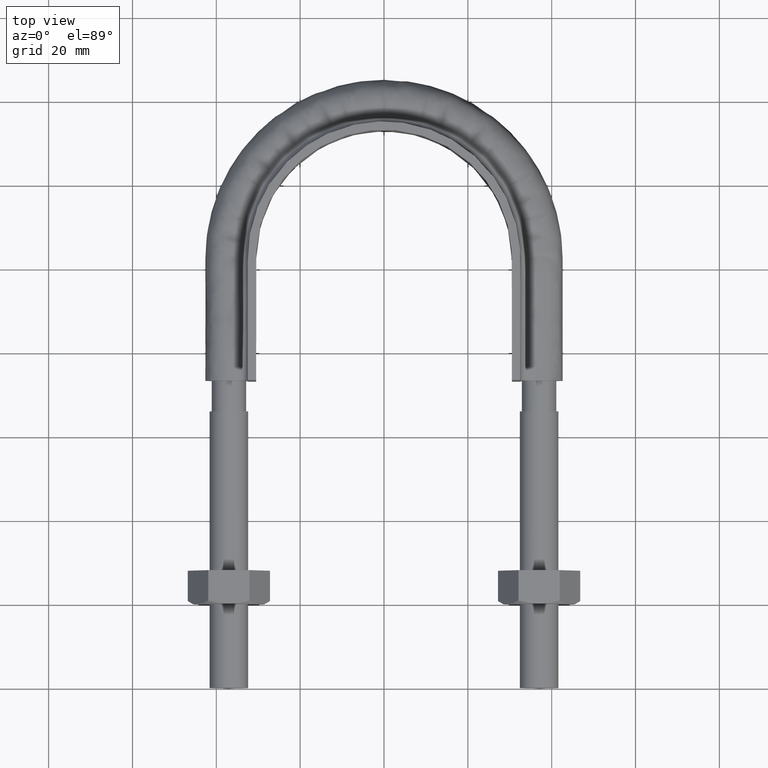
[diagram: clean part render]
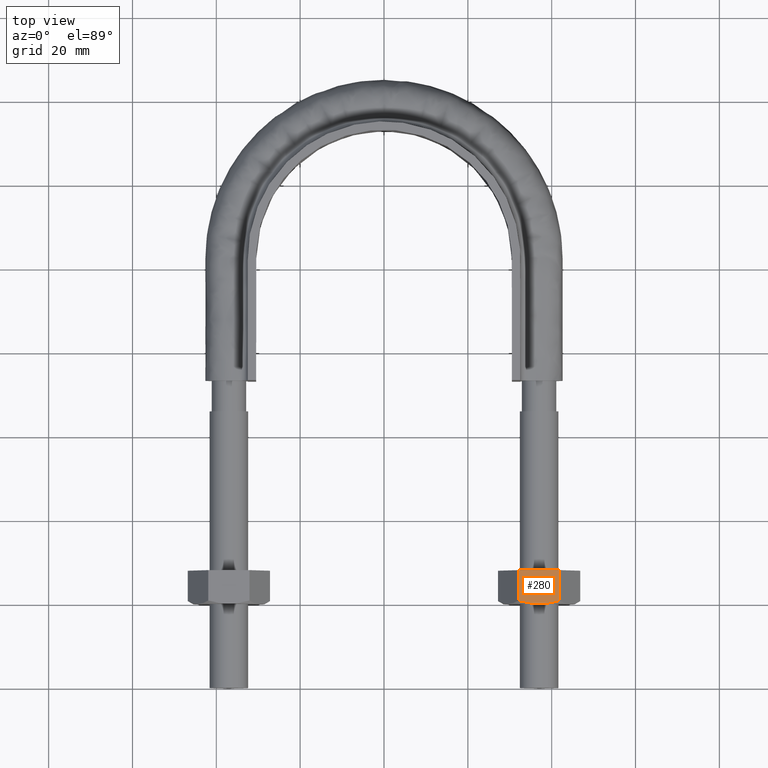
[diagram: same view with one face highlighted and labeled with its STEP entity id]
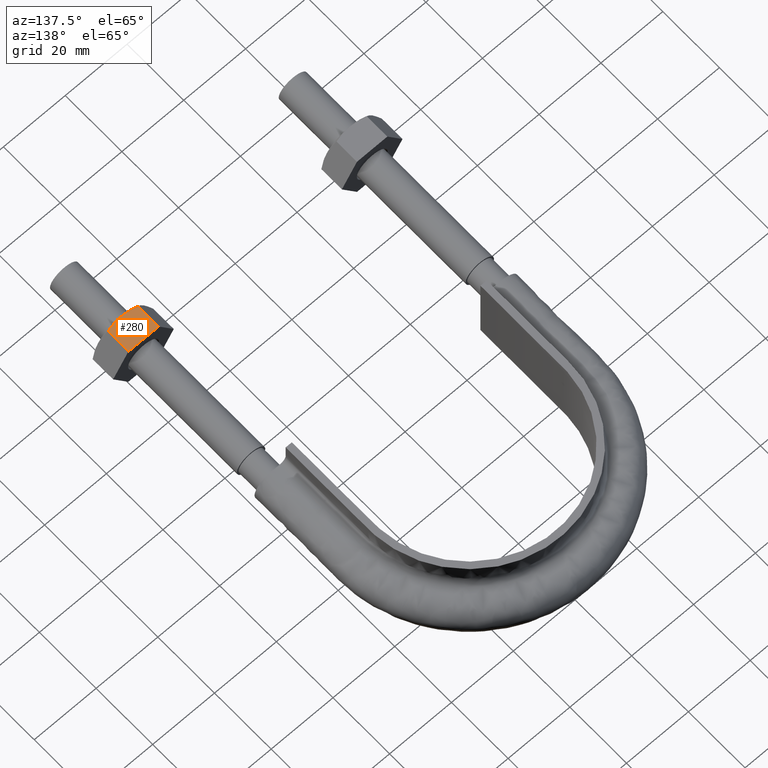
[diagram: same view with one face highlighted and labeled with its STEP entity id]
A machine part, top view. The second image highlights one B-rep face of the part: STEP entity #280.
A second angle (auxiliary view) of the same face is appended — the face is thin or edge-on in the first view.
In plain terms, the highlighted planar face has unit normal (0, -0, -1).
Its self-contained STEP definition (entity closure, byte-faithful):
#280 = ADVANCED_FACE( '', ( #435 ), #436, .F. );
#435 = FACE_OUTER_BOUND( '', #1432, .T. );
#436 = PLANE( '', #1433 );
#1432 = EDGE_LOOP( '', ( #1900, #1901, #1902, #1903, #1904 ) );
#1433 = AXIS2_PLACEMENT_3D( '', #1905, #1906, #1907 );
#1900 = ORIENTED_EDGE( '', *, *, #2134, .F. );
#1901 = ORIENTED_EDGE( '', *, *, #2139, .F. );
#1902 = ORIENTED_EDGE( '', *, *, #2133, .F. );
#1903 = ORIENTED_EDGE( '', *, *, #2130, .F. );
#1904 = ORIENTED_EDGE( '', *, *, #2140, .F. );
#1905 = CARTESIAN_POINT( '', ( 32.0925227118848, 27.9999999999964, 8.49999999999807 ) );
#1906 = DIRECTION( '', ( 3.92741394961149E-013, -6.12303176912151E-017, -1.00000000000000 ) );
#1907 = DIRECTION( '', ( -1.00000000000000, 2.44921270764451E-016, -3.92741394961149E-013 ) );
#2130 = EDGE_CURVE( '', #2368, #2350, #2370, .T. );
#2133 = EDGE_CURVE( '', #2350, #2371, #2375, .F. );
#2134 = EDGE_CURVE( '', #2328, #2376, #2377, .T. );
#2139 = EDGE_CURVE( '', #2371, #2328, #2383, .T. );
#2140 = EDGE_CURVE( '', #2376, #2368, #2384, .T. );
#2328 = VERTEX_POINT( '', #2923 );
#2350 = VERTEX_POINT( '', #2960 );
#2368 = VERTEX_POINT( '', #2982 );
#2370 = LINE( '', #2984, #2985 );
#2371 = VERTEX_POINT( '', #2986 );
#2375 = LINE( '', #2991, #2992 );
#2376 = VERTEX_POINT( '', #2993 );
#2377 = B_SPLINE_CURVE_WITH_KNOTS( '', 3, ( #2994, #2995, #2996, #2997, #2998, #2999, #3000, #3001 ), .UNSPECIFIED., .F., .F., ( 4, 2, 2, 4 ), ( 0.00493529902949373, 0.00616408349151779, 0.00739286795354186, 0.00985043687758999 ), .UNSPECIFIED. );
#2383 = B_SPLINE_CURVE_WITH_KNOTS( '', 3, ( #3018, #3019, #3020, #3021, #3022, #3023 ), .UNSPECIFIED., .F., .F., ( 4, 2, 4 ), ( 7.17194508352321E-007, 0.00246800811200104, 0.00493529902949373 ), .UNSPECIFIED. );
#2384 = LINE( '', #3024, #3025 );
#2923 = CARTESIAN_POINT( '', ( 36.9999999999967, 19.9999999999964, 8.50000000000000 ) );
#2960 = CARTESIAN_POINT( '', ( 41.8774993592995, 27.9999999999964, 8.50000000000191 ) );
#2982 = CARTESIAN_POINT( '', ( 32.1225006406938, 27.9999999999964, 8.49999999999809 ) );
#2984 = CARTESIAN_POINT( '', ( 32.0999999999967, 27.9999999999964, 8.49999999999807 ) );
#2985 = VECTOR( '', #3279, 1000.00000000000 );
#2986 = CARTESIAN_POINT( '', ( 41.8774993592995, 20.7505553499429, 8.50000000000191 ) );
#2991 = CARTESIAN_POINT( '', ( 41.8774993592995, 27.9999999999964, 8.50000000000191 ) );
#2992 = VECTOR( '', #3284, 1000.00000000000 );
#2993 = CARTESIAN_POINT( '', ( 32.1225006406938, 20.7505553499429, 8.49999999999809 ) );
#2994 = CARTESIAN_POINT( '', ( 36.9999999999967, 19.9999999999964, 8.50000000000000 ) );
#2995 = CARTESIAN_POINT( '', ( 36.5862903722458, 19.9999999999964, 8.49999999999984 ) );
#2996 = CARTESIAN_POINT( '', ( 36.1705131783942, 20.0177112141184, 8.49999999999967 ) );
#2997 = CARTESIAN_POINT( '', ( 35.3480009983391, 20.0863020976762, 8.49999999999935 ) );
#2998 = CARTESIAN_POINT( '', ( 34.9394788819999, 20.1371114863303, 8.49999999999919 ) );
#2999 = CARTESIAN_POINT( '', ( 33.7211323152159, 20.3331491064619, 8.49999999999871 ) );
#3000 = CARTESIAN_POINT( '', ( 32.9185008687894, 20.5218250443813, 8.49999999999839 ) );
#3001 = CARTESIAN_POINT( '', ( 32.1225006406938, 20.7505553499429, 8.49999999999808 ) );
#3018 = CARTESIAN_POINT( '', ( 41.8774993592995, 20.7505553499429, 8.50000000000191 ) );
#3019 = CARTESIAN_POINT( '', ( 41.0793958257554, 20.5212206605119, 8.50000000000160 ) );
#3020 = CARTESIAN_POINT( '', ( 40.2755276393699, 20.3324529479768, 8.50000000000129 ) );
#3021 = CARTESIAN_POINT( '', ( 38.6512367166328, 20.0714150925723, 8.50000000000065 ) );
#3022 = CARTESIAN_POINT( '', ( 37.8306924758340, 19.9999999999964, 8.50000000000033 ) );
#3023 = CARTESIAN_POINT( '', ( 36.9999999999967, 19.9999999999964, 8.50000000000000 ) );
#3024 = CARTESIAN_POINT( '', ( 32.1225006406938, 27.9999999999964, 8.49999999999809 ) );
#3025 = VECTOR( '', #3289, 1000.00000000000 );
#3279 = DIRECTION( '', ( 1.00000000000000, -2.44921270764451E-016, 3.92741394961149E-013 ) );
#3284 = DIRECTION( '', ( 2.44921270764476E-016, 1.00000000000000, -6.12303176911189E-017 ) );
#3289 = DIRECTION( '', ( 2.44921270764476E-016, 1.00000000000000, -6.12303176911189E-017 ) );